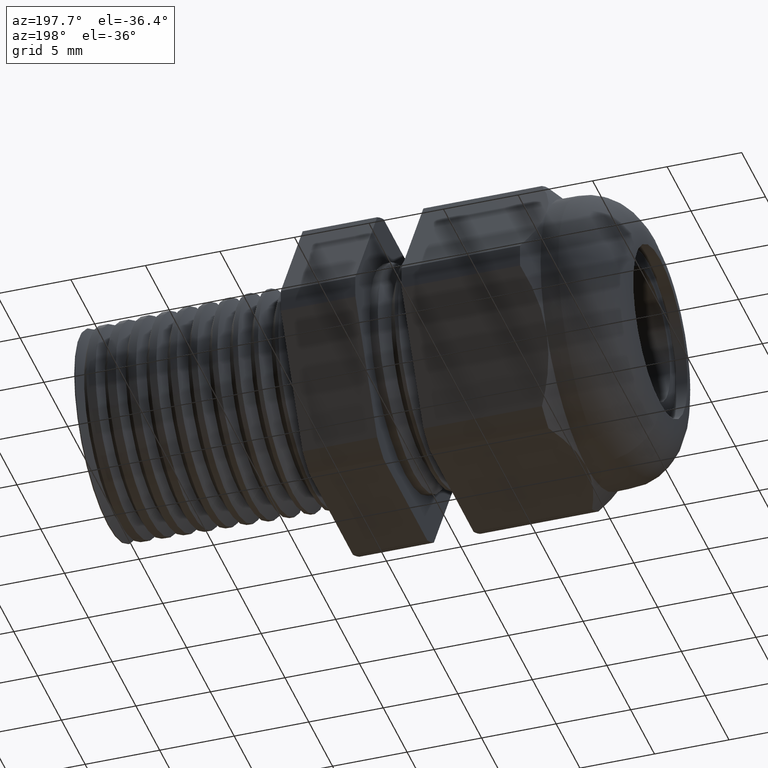
[diagram: clean part render]
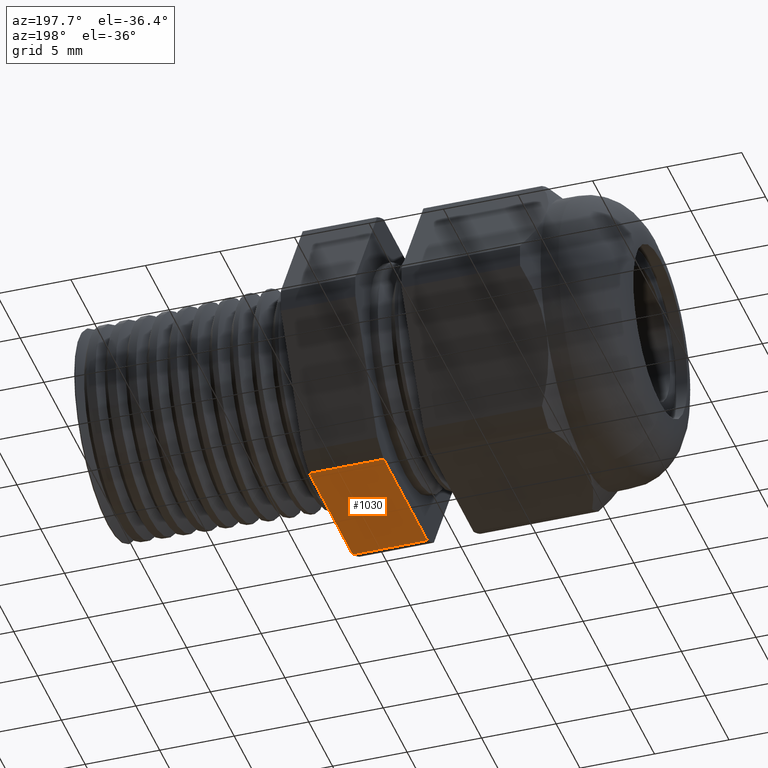
[diagram: same view with one face highlighted and labeled with its STEP entity id]
A machine part, auxiliary view. The second image highlights one B-rep face of the part: STEP entity #1030.
In plain terms, the highlighted planar face has unit normal (0, 0, -1).
Its self-contained STEP definition (entity closure, byte-faithful):
#448 = VERTEX_POINT ( 'NONE', #2164 ) ;
#450 = EDGE_CURVE ( 'NONE', #448, #451, #2163, .T. ) ;
#451 = VERTEX_POINT ( 'NONE', #2159 ) ;
#960 = VERTEX_POINT ( 'NONE', #3071 ) ;
#962 = EDGE_CURVE ( 'NONE', #960, #963, #3070, .T. ) ;
#963 = VERTEX_POINT ( 'NONE', #3066 ) ;
#1028 = EDGE_CURVE ( 'NONE', #448, #963, #3160, .T. ) ;
#1030 = ADVANCED_FACE ( 'NONE', ( #3156 ), #3155, .T. ) ;
#1031 = EDGE_LOOP ( 'NONE', ( #1032, #1033, #1034, #1036 ) ) ;
#1032 = ORIENTED_EDGE ( 'NONE', *, *, #1028, .T. ) ;
#1033 = ORIENTED_EDGE ( 'NONE', *, *, #962, .F. ) ;
#1034 = ORIENTED_EDGE ( 'NONE', *, *, #1035, .F. ) ;
#1035 = EDGE_CURVE ( 'NONE', #451, #960, #3150, .T. ) ;
#1036 = ORIENTED_EDGE ( 'NONE', *, *, #450, .F. ) ;
#2159 = CARTESIAN_POINT ( 'NONE',  ( -0.3100000000000000000, 0.1806628420566882600, -0.3750000000000001100 ) ) ;
#2160 = DIRECTION ( 'NONE',  ( 0.0000000000000000000, 1.000000000000000000, 0.0000000000000000000 ) ) ;
#2161 = VECTOR ( 'NONE', #2160, 39.37007874015748100 ) ;
#2162 = CARTESIAN_POINT ( 'NONE',  ( -0.3100000000000000000, 0.7499999999999998900, -0.3750000000000001100 ) ) ;
#2163 = LINE ( 'NONE', #2162, #2161 ) ;
#2164 = CARTESIAN_POINT ( 'NONE',  ( -0.3100000000000000000, -0.1806628420566883700, -0.3750000000000001100 ) ) ;
#3066 = CARTESIAN_POINT ( 'NONE',  ( -0.5068503937007874400, -0.1806628420566883700, -0.3750000000000001100 ) ) ;
#3067 = DIRECTION ( 'NONE',  ( 0.0000000000000000000, -1.000000000000000000, 0.0000000000000000000 ) ) ;
#3068 = VECTOR ( 'NONE', #3067, 39.37007874015748100 ) ;
#3069 = CARTESIAN_POINT ( 'NONE',  ( -0.5068503937007874400, 0.7499999999999998900, -0.3750000000000001100 ) ) ;
#3070 = LINE ( 'NONE', #3069, #3068 ) ;
#3071 = CARTESIAN_POINT ( 'NONE',  ( -0.5068503937007874400, 0.1806628420566882600, -0.3750000000000001100 ) ) ;
#3148 = VECTOR ( 'NONE', #3211, 39.37007874015748100 ) ;
#3149 = CARTESIAN_POINT ( 'NONE',  ( 0.2800000000000000300, 0.1806628420566882600, -0.3750000000000001100 ) ) ;
#3150 = LINE ( 'NONE', #3149, #3148 ) ;
#3151 = DIRECTION ( 'NONE',  ( -1.000000000000000000, 0.0000000000000000000, 0.0000000000000000000 ) ) ;
#3152 = DIRECTION ( 'NONE',  ( 0.0000000000000000000, 0.0000000000000000000, -1.000000000000000000 ) ) ;
#3153 = CARTESIAN_POINT ( 'NONE',  ( 0.2800000000000000300, 0.1806628420566883700, -0.3750000000000001100 ) ) ;
#3154 = AXIS2_PLACEMENT_3D ( 'NONE', #3153, #3152, #3151 ) ;
#3155 = PLANE ( 'NONE',  #3154 ) ;
#3156 = FACE_OUTER_BOUND ( 'NONE', #1031, .T. ) ;
#3157 = DIRECTION ( 'NONE',  ( -1.000000000000000000, 0.0000000000000000000, 0.0000000000000000000 ) ) ;
#3158 = VECTOR ( 'NONE', #3157, 39.37007874015748100 ) ;
#3159 = CARTESIAN_POINT ( 'NONE',  ( 0.2800000000000000300, -0.1806628420566883700, -0.3750000000000001100 ) ) ;
#3160 = LINE ( 'NONE', #3159, #3158 ) ;
#3211 = DIRECTION ( 'NONE',  ( -1.000000000000000000, 0.0000000000000000000, 0.0000000000000000000 ) ) ;